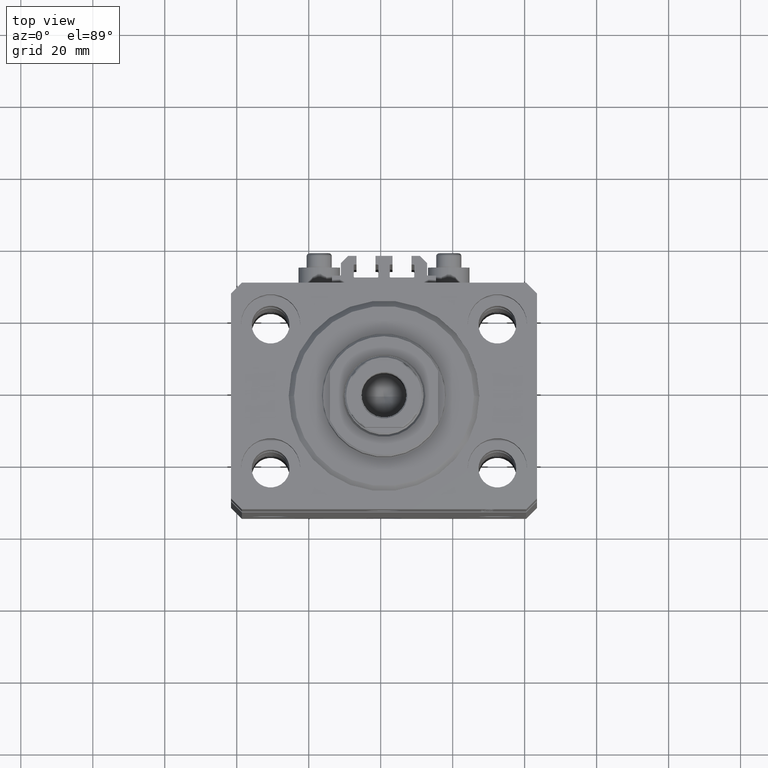
[diagram: clean part render]
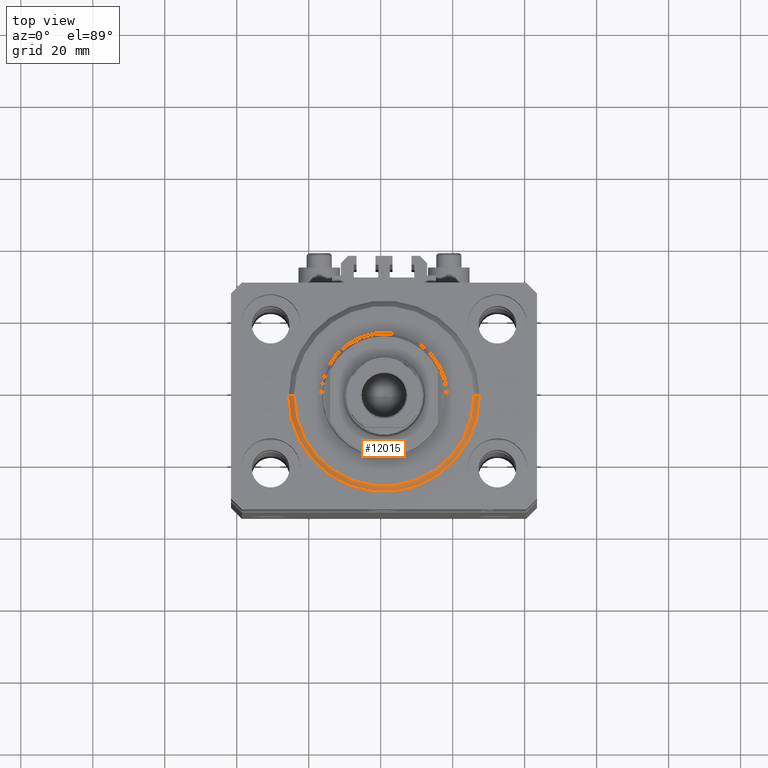
[diagram: same view with one face highlighted and labeled with its STEP entity id]
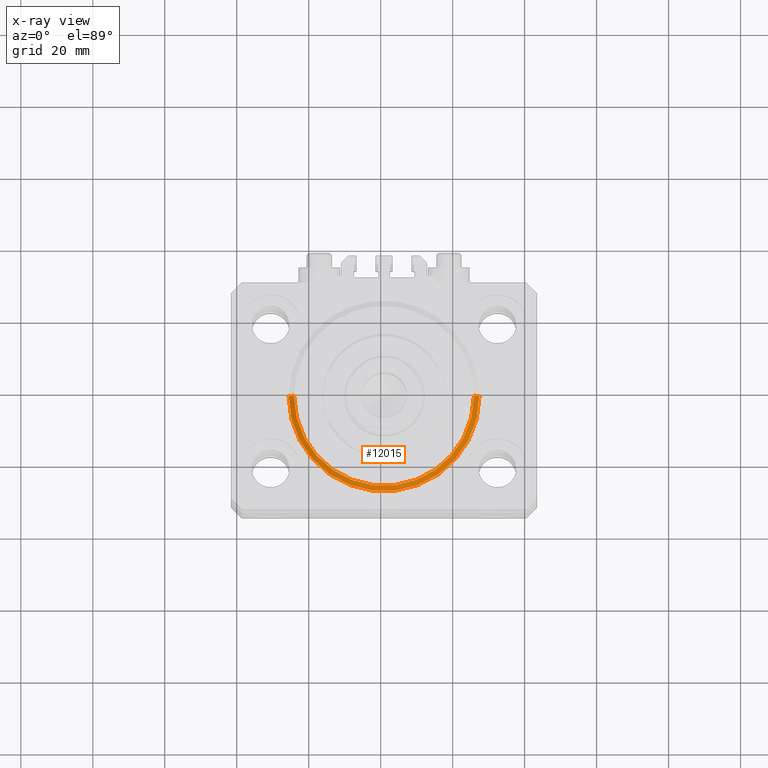
[diagram: x-ray of the same camera — body ghosted, the highlighted face saturated]
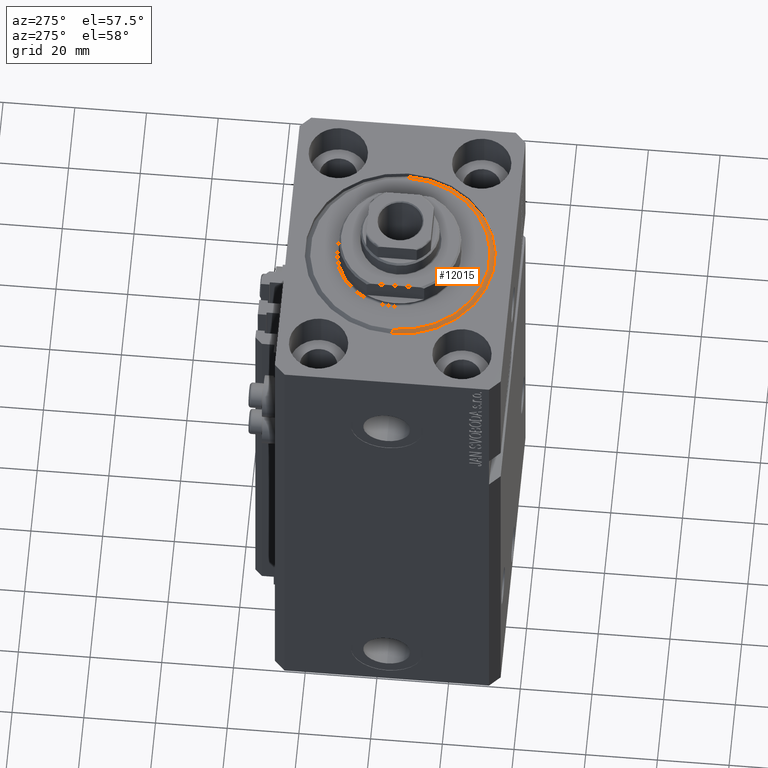
[diagram: same view with one face highlighted and labeled with its STEP entity id]
A machine part, top view. The second image highlights one B-rep face of the part: STEP entity #12015.
The next image is the same camera in x-ray: the body ghosted, the highlighted face saturated — about 0% of this face is hidden behind the body in this view.
A second angle (auxiliary view) of the same face is appended — the face is thin or edge-on in the first view.
In plain terms, the highlighted conical surface has half-angle 45 deg.
Its self-contained STEP definition (entity closure, byte-faithful):
#464 = DIRECTION ( 'NONE',  ( -0.000000000000000000, -0.000000000000000000, 1.000000000000000000 ) ) ;
#941 = ORIENTED_EDGE ( 'NONE', *, *, #27382, .F. ) ;
#1155 = CONICAL_SURFACE ( 'NONE', #36923, 26.50000000000000355, 0.7853981633974495002 ) ;
#3427 = LINE ( 'NONE', #10024, #42574 ) ;
#3438 = VERTEX_POINT ( 'NONE', #19499 ) ;
#3447 = DIRECTION ( 'NONE',  ( -0.000000000000000000, -0.000000000000000000, -1.000000000000000000 ) ) ;
#7583 = AXIS2_PLACEMENT_3D ( 'NONE', #16187, #23950, #31738 ) ;
#8557 = CIRCLE ( 'NONE', #41951, 24.99999999999998224 ) ;
#9116 = CIRCLE ( 'NONE', #7583, 26.50000000000000355 ) ;
#10024 = CARTESIAN_POINT ( 'NONE',  ( 26.50000000000000355, 0.000000000000000000, 1.500000000000018652 ) ) ;
#11002 = DIRECTION ( 'NONE',  ( 1.000000000000000000, 0.000000000000000000, 0.000000000000000000 ) ) ;
#12015 = ADVANCED_FACE ( 'NONE', ( #16274 ), #1155, .T. ) ;
#12208 = VERTEX_POINT ( 'NONE', #22287 ) ;
#13435 = VECTOR ( 'NONE', #14286, 1000.000000000000000 ) ;
#13667 = CARTESIAN_POINT ( 'NONE',  ( 24.99999999999998224, 0.000000000000000000, 0.000000000000000000 ) ) ;
#14286 = DIRECTION ( 'NONE',  ( -0.7071067811865483499, 8.659560562354942719E-17, 0.7071067811865466846 ) ) ;
#16187 = CARTESIAN_POINT ( 'NONE',  ( 0.000000000000000000, 0.000000000000000000, 1.500000000000018652 ) ) ;
#16274 = FACE_OUTER_BOUND ( 'NONE', #20377, .T. ) ;
#17218 = LINE ( 'NONE', #24982, #13435 ) ;
#19236 = VERTEX_POINT ( 'NONE', #13667 ) ;
#19499 = CARTESIAN_POINT ( 'NONE',  ( 26.50000000000000355, 3.245314017740486554E-15, 1.500000000000018652 ) ) ;
#20377 = EDGE_LOOP ( 'NONE', ( #45200, #941, #35322, #37577 ) ) ;
#21008 = EDGE_CURVE ( 'NONE', #30043, #3438, #9116, .T. ) ;
#22287 = CARTESIAN_POINT ( 'NONE',  ( -24.99999999999998224, 3.153465507804433615E-15, 0.000000000000000000 ) ) ;
#23127 = EDGE_CURVE ( 'NONE', #19236, #3438, #3427, .T. ) ;
#23950 = DIRECTION ( 'NONE',  ( -0.000000000000000000, -0.000000000000000000, 1.000000000000000000 ) ) ;
#24982 = CARTESIAN_POINT ( 'NONE',  ( -26.50000000000000355, 3.245314017740486554E-15, 1.500000000000018652 ) ) ;
#27382 = EDGE_CURVE ( 'NONE', #19236, #12208, #8557, .T. ) ;
#30043 = VERTEX_POINT ( 'NONE', #45281 ) ;
#31109 = CARTESIAN_POINT ( 'NONE',  ( 0.000000000000000000, 0.000000000000000000, 1.500000000000018652 ) ) ;
#31738 = DIRECTION ( 'NONE',  ( 1.000000000000000000, 0.000000000000000000, 0.000000000000000000 ) ) ;
#34763 = DIRECTION ( 'NONE',  ( 1.000000000000000000, 0.000000000000000000, 0.000000000000000000 ) ) ;
#35322 = ORIENTED_EDGE ( 'NONE', *, *, #23127, .T. ) ;
#36777 = CARTESIAN_POINT ( 'NONE',  ( 0.000000000000000000, 0.000000000000000000, 0.000000000000000000 ) ) ;
#36923 = AXIS2_PLACEMENT_3D ( 'NONE', #31109, #464, #34763 ) ;
#37577 = ORIENTED_EDGE ( 'NONE', *, *, #21008, .F. ) ;
#41951 = AXIS2_PLACEMENT_3D ( 'NONE', #36777, #3447, #11002 ) ;
#42574 = VECTOR ( 'NONE', #47467, 1000.000000000000000 ) ;
#45200 = ORIENTED_EDGE ( 'NONE', *, *, #47578, .F. ) ;
#45281 = CARTESIAN_POINT ( 'NONE',  ( -26.50000000000000355, 0.000000000000000000, 1.500000000000018652 ) ) ;
#47467 = DIRECTION ( 'NONE',  ( 0.7071067811865483499, 0.000000000000000000, 0.7071067811865466846 ) ) ;
#47578 = EDGE_CURVE ( 'NONE', #12208, #30043, #17218, .T. ) ;